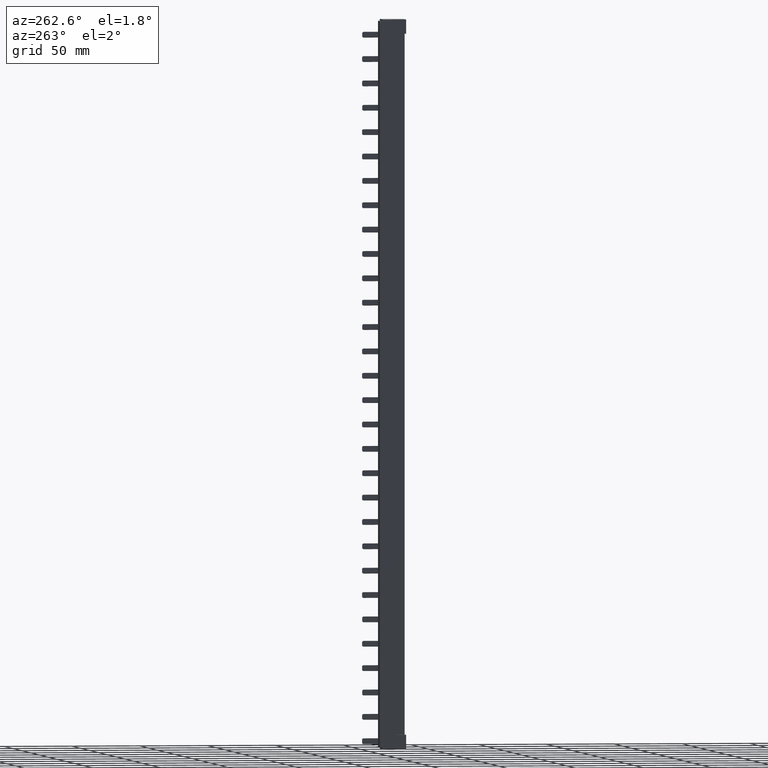
[diagram: clean part render]
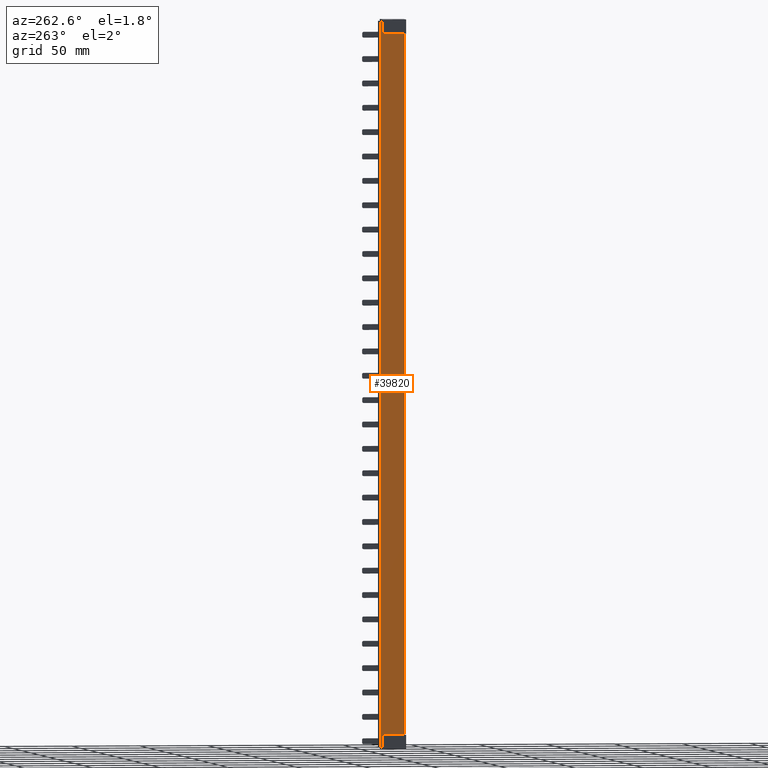
[diagram: same view with one face highlighted and labeled with its STEP entity id]
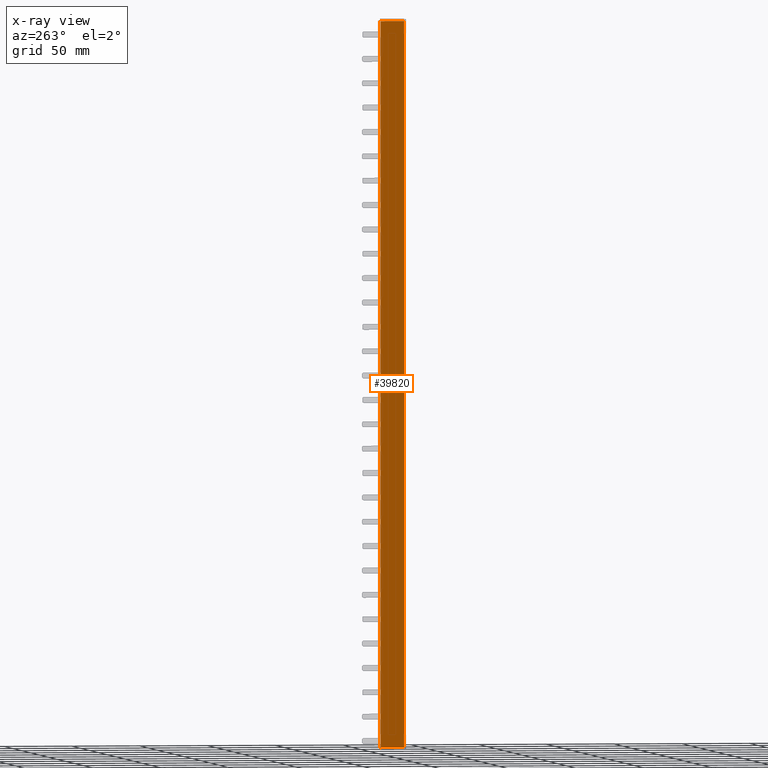
[diagram: x-ray of the same camera — body ghosted, the highlighted face saturated]
A machine part, auxiliary view. The second image highlights one B-rep face of the part: STEP entity #39820.
The next image is the same camera in x-ray: the body ghosted, the highlighted face saturated — about 0% of this face is hidden behind the body in this view.
In plain terms, the highlighted planar face has unit normal (-1, 0, 0).
Its self-contained STEP definition (entity closure, byte-faithful):
#15630 = EDGE_CURVE ( 'NONE', #36488, #36610, #28028, .T. ) ;
#15631 = EDGE_CURVE ( 'NONE', #36586, #36488, #28063, .T. ) ;
#15801 = EDGE_CURVE ( 'NONE', #36622, #36645, #16668, .T. ) ;
#15880 = EDGE_CURVE ( 'NONE', #36645, #36614, #17220, .T. ) ;
#15978 = EDGE_CURVE ( 'NONE', #36614, #36586, #17817, .T. ) ;
#15983 = EDGE_CURVE ( 'NONE', #36610, #36622, #18021, .T. ) ;
#16668 = LINE ( 'NONE', #16685, #47446 ) ;
#16685 = CARTESIAN_POINT ( 'NONE',  ( -0.6240000000000715000, -9.057104323749680200, 217.8000000000587600 ) ) ;
#16809 = DIRECTION ( 'NONE',  ( 1.604368532695314200E-015, 1.000000000000000000, -0.0000000000000000000 ) ) ;
#17162 = DIRECTION ( 'NONE',  ( 0.0000000000000000000, 1.000000000000000000, 0.0000000000000000000 ) ) ;
#17220 = LINE ( 'NONE', #17226, #47560 ) ;
#17226 = CARTESIAN_POINT ( 'NONE',  ( -0.6240000000000411900, 1.249999999999640300, 217.7999999999999800 ) ) ;
#17817 = LINE ( 'NONE', #17820, #47616 ) ;
#17820 = CARTESIAN_POINT ( 'NONE',  ( -0.6240000000000285300, 17.79999999999998600, 217.7999999999999800 ) ) ;
#17855 = DIRECTION ( 'NONE',  ( -0.0000000000000000000, -0.0000000000000000000, -1.000000000000000000 ) ) ;
#17989 = CARTESIAN_POINT ( 'NONE',  ( -0.6240000000000562900, 0.5000000000000004400, 217.7999999999999800 ) ) ;
#17997 = DIRECTION ( 'NONE',  ( 0.0000000000000000000, 0.0000000000000000000, 1.000000000000000000 ) ) ;
#18021 = LINE ( 'NONE', #17989, #47632 ) ;
#24677 = AXIS2_PLACEMENT_3D ( 'NONE', #38618, #38596, #38595 ) ;
#27973 = CARTESIAN_POINT ( 'NONE',  ( -0.6240000000000411900, 11.69096289031700300, -313.8000000000000100 ) ) ;
#27980 = DIRECTION ( 'NONE',  ( 0.0000000000000000000, -1.000000000000000000, -3.636195823394557300E-017 ) ) ;
#28000 = CARTESIAN_POINT ( 'NONE',  ( -0.6240000000000715000, -9.057104323749680200, -313.8000000000148500 ) ) ;
#28028 = LINE ( 'NONE', #28000, #37662 ) ;
#28030 = DIRECTION ( 'NONE',  ( -1.604368532695314200E-015, -1.000000000000000000, 0.0000000000000000000 ) ) ;
#28063 = LINE ( 'NONE', #27973, #37681 ) ;
#31971 = ORIENTED_EDGE ( 'NONE', *, *, #15880, .T. ) ;
#31982 = ORIENTED_EDGE ( 'NONE', *, *, #15983, .T. ) ;
#32008 = ORIENTED_EDGE ( 'NONE', *, *, #15630, .T. ) ;
#32049 = ORIENTED_EDGE ( 'NONE', *, *, #15801, .T. ) ;
#32075 = ORIENTED_EDGE ( 'NONE', *, *, #15631, .T. ) ;
#32142 = ORIENTED_EDGE ( 'NONE', *, *, #15978, .T. ) ;
#36488 = VERTEX_POINT ( 'NONE', #58710 ) ;
#36586 = VERTEX_POINT ( 'NONE', #58858 ) ;
#36610 = VERTEX_POINT ( 'NONE', #58814 ) ;
#36614 = VERTEX_POINT ( 'NONE', #58822 ) ;
#36622 = VERTEX_POINT ( 'NONE', #58824 ) ;
#36645 = VERTEX_POINT ( 'NONE', #58902 ) ;
#37662 = VECTOR ( 'NONE', #28030, 1000.000000000000000 ) ;
#37681 = VECTOR ( 'NONE', #27980, 1000.000000000000000 ) ;
#38595 = DIRECTION ( 'NONE',  ( -1.604368532695314200E-015, -1.000000000000000000, 0.0000000000000000000 ) ) ;
#38596 = DIRECTION ( 'NONE',  ( -1.000000000000000000, 1.604368532695314200E-015, 0.0000000000000000000 ) ) ;
#38618 = CARTESIAN_POINT ( 'NONE',  ( -0.6240000000000715000, -9.057104323749680200, 217.7999999999999800 ) ) ;
#38622 = PLANE ( 'NONE',  #24677 ) ;
#38633 = FACE_OUTER_BOUND ( 'NONE', #53739, .T. ) ;
#39820 = ADVANCED_FACE ( 'NONE', ( #38633 ), #38622, .T. ) ;
#47446 = VECTOR ( 'NONE', #16809, 1000.000000000000000 ) ;
#47560 = VECTOR ( 'NONE', #17162, 1000.000000000000000 ) ;
#47616 = VECTOR ( 'NONE', #17855, 1000.000000000000000 ) ;
#47632 = VECTOR ( 'NONE', #17997, 1000.000000000000000 ) ;
#53739 = EDGE_LOOP ( 'NONE', ( #32142, #32075, #32008, #31982, #32049, #31971 ) ) ;
#58710 = CARTESIAN_POINT ( 'NONE',  ( -0.6240000000000359700, 16.49999999999971600, -313.8000000000221800 ) ) ;
#58814 = CARTESIAN_POINT ( 'NONE',  ( -0.6240000000000562900, 0.5000000000000008900, -313.8000000000074600 ) ) ;
#58822 = CARTESIAN_POINT ( 'NONE',  ( -0.6240000000000348600, 17.79999999999998600, 217.7999999999999800 ) ) ;
#58824 = CARTESIAN_POINT ( 'NONE',  ( -0.6240000000000562900, 0.5000000000000008900, 217.8000000000587000 ) ) ;
#58858 = CARTESIAN_POINT ( 'NONE',  ( -0.6240000000000348600, 17.79999999999998600, -313.8000000000000700 ) ) ;
#58902 = CARTESIAN_POINT ( 'NONE',  ( -0.6240000000000381900, 16.49999999999971200, 217.8000000000398600 ) ) ;